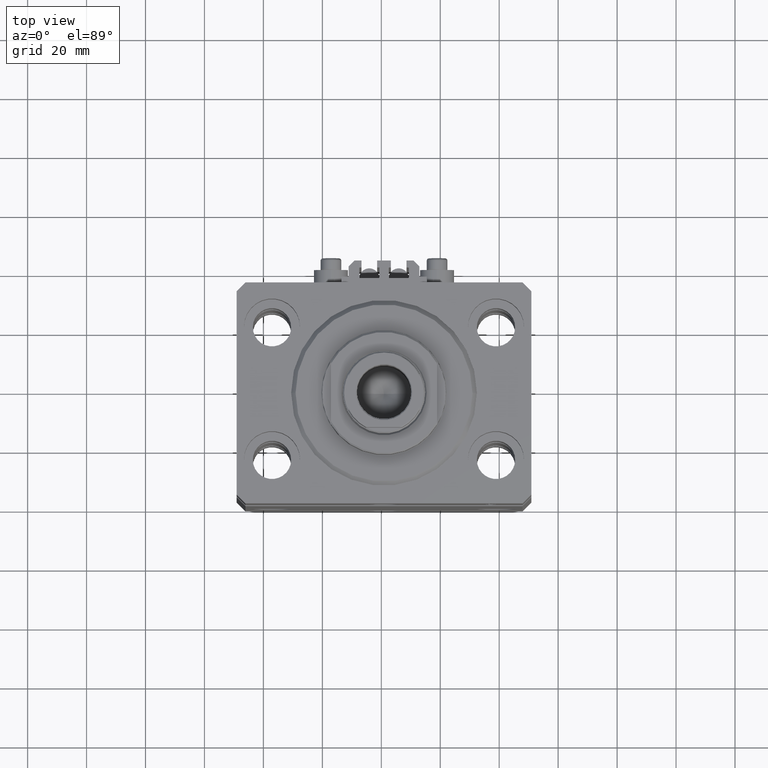
[diagram: clean part render]
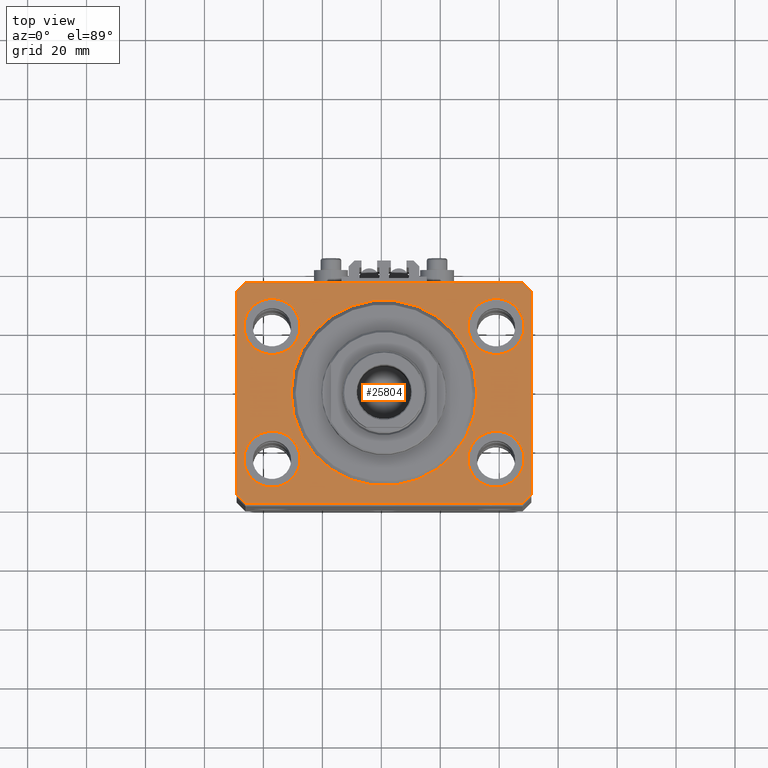
[diagram: same view with one face highlighted and labeled with its STEP entity id]
A machine part, top view. The second image highlights one B-rep face of the part: STEP entity #25804.
In plain terms, the highlighted planar face has unit normal (0, 0, 1).
Its self-contained STEP definition (entity closure, byte-faithful):
#166 = VERTEX_POINT ( 'NONE', #11821 ) ;
#359 = DIRECTION ( 'NONE',  ( 1.000000000000000000, 0.000000000000000000, 0.000000000000000000 ) ) ;
#598 = DIRECTION ( 'NONE',  ( 0.000000000000000000, 0.000000000000000000, 1.000000000000000000 ) ) ;
#782 = CARTESIAN_POINT ( 'NONE',  ( 47.50000000000000711, -22.50000000000000000, 0.000000000000000000 ) ) ;
#1303 = CARTESIAN_POINT ( 'NONE',  ( -47.00000000000000000, -37.49999999999999289, 0.000000000000000000 ) ) ;
#1490 = CARTESIAN_POINT ( 'NONE',  ( -38.00000000000000711, -22.50000000000000000, 0.000000000000000000 ) ) ;
#1506 = VERTEX_POINT ( 'NONE', #20974 ) ;
#1576 = ORIENTED_EDGE ( 'NONE', *, *, #12869, .T. ) ;
#1676 = VERTEX_POINT ( 'NONE', #34798 ) ;
#1870 = EDGE_LOOP ( 'NONE', ( #39419, #19775 ) ) ;
#2377 = EDGE_LOOP ( 'NONE', ( #22781, #12585 ) ) ;
#3584 = ORIENTED_EDGE ( 'NONE', *, *, #30502, .F. ) ;
#3914 = CARTESIAN_POINT ( 'NONE',  ( 0.000000000000000000, 0.000000000000000000, 0.000000000000000000 ) ) ;
#3920 = EDGE_CURVE ( 'NONE', #21399, #1676, #5706, .T. ) ;
#4690 = VERTEX_POINT ( 'NONE', #18061 ) ;
#5026 = LINE ( 'NONE', #1303, #34490 ) ;
#5327 = VECTOR ( 'NONE', #35050, 1000.000000000000000 ) ;
#5407 = VERTEX_POINT ( 'NONE', #33168 ) ;
#5416 = LINE ( 'NONE', #35643, #21094 ) ;
#5705 = CARTESIAN_POINT ( 'NONE',  ( 47.00000000000056843, 37.49999999999999289, 0.000000000000000000 ) ) ;
#5706 = CIRCLE ( 'NONE', #18380, 9.500000000000001776 ) ;
#6029 = AXIS2_PLACEMENT_3D ( 'NONE', #9250, #34534, #24113 ) ;
#6598 = VERTEX_POINT ( 'NONE', #28485 ) ;
#6695 = DIRECTION ( 'NONE',  ( -1.000000000000000000, 7.381802025433175941E-17, 0.000000000000000000 ) ) ;
#7546 = DIRECTION ( 'NONE',  ( 0.000000000000000000, 0.000000000000000000, 1.000000000000000000 ) ) ;
#7851 = CARTESIAN_POINT ( 'NONE',  ( -50.00000000000000000, -34.50000000000000000, 0.000000000000000000 ) ) ;
#7987 = DIRECTION ( 'NONE',  ( 0.000000000000000000, 0.000000000000000000, 1.000000000000000000 ) ) ;
#8213 = ORIENTED_EDGE ( 'NONE', *, *, #16818, .T. ) ;
#8388 = VECTOR ( 'NONE', #21939, 1000.000000000000000 ) ;
#8524 = ORIENTED_EDGE ( 'NONE', *, *, #13900, .T. ) ;
#8986 = EDGE_CURVE ( 'NONE', #48482, #11734, #19328, .T. ) ;
#9250 = CARTESIAN_POINT ( 'NONE',  ( -38.00000000000000711, 22.50000000000000000, 0.000000000000000000 ) ) ;
#9757 = EDGE_CURVE ( 'NONE', #17304, #29160, #48124, .T. ) ;
#9930 = ORIENTED_EDGE ( 'NONE', *, *, #30952, .F. ) ;
#10018 = VECTOR ( 'NONE', #6695, 1000.000000000000000 ) ;
#10464 = DIRECTION ( 'NONE',  ( 2.011273595335428326E-16, -1.000000000000000000, 0.000000000000000000 ) ) ;
#10489 = ORIENTED_EDGE ( 'NONE', *, *, #13196, .F. ) ;
#10831 = AXIS2_PLACEMENT_3D ( 'NONE', #38451, #7987, #11461 ) ;
#10876 = PLANE ( 'NONE',  #42012 ) ;
#11461 = DIRECTION ( 'NONE',  ( 1.000000000000000000, 0.000000000000000000, 0.000000000000000000 ) ) ;
#11563 = DIRECTION ( 'NONE',  ( 0.7071067811865491270, -0.7071067811865459074, 0.000000000000000000 ) ) ;
#11585 = DIRECTION ( 'NONE',  ( 0.000000000000000000, 0.000000000000000000, 1.000000000000000000 ) ) ;
#11698 = DIRECTION ( 'NONE',  ( 1.000000000000000000, 0.000000000000000000, 0.000000000000000000 ) ) ;
#11734 = VERTEX_POINT ( 'NONE', #47894 ) ;
#11821 = CARTESIAN_POINT ( 'NONE',  ( 47.00000000000000000, -37.50000000000000711, 0.000000000000000000 ) ) ;
#12237 = VECTOR ( 'NONE', #10464, 1000.000000000000000 ) ;
#12538 = EDGE_CURVE ( 'NONE', #32385, #166, #5026, .T. ) ;
#12557 = VERTEX_POINT ( 'NONE', #16925 ) ;
#12585 = ORIENTED_EDGE ( 'NONE', *, *, #14353, .F. ) ;
#12869 = EDGE_CURVE ( 'NONE', #29160, #32385, #30147, .T. ) ;
#12975 = EDGE_CURVE ( 'NONE', #166, #4690, #47951, .T. ) ;
#13196 = EDGE_CURVE ( 'NONE', #41722, #6598, #42415, .T. ) ;
#13539 = CARTESIAN_POINT ( 'NONE',  ( 50.00000000000051870, 34.49999999999995026, 0.000000000000000000 ) ) ;
#13612 = ORIENTED_EDGE ( 'NONE', *, *, #12538, .T. ) ;
#13851 = CARTESIAN_POINT ( 'NONE',  ( 28.50000000000000355, 22.50000000000001421, 0.000000000000000000 ) ) ;
#13900 = EDGE_CURVE ( 'NONE', #4690, #12557, #5416, .T. ) ;
#13967 = AXIS2_PLACEMENT_3D ( 'NONE', #38685, #42159, #41671 ) ;
#14335 = FACE_BOUND ( 'NONE', #1870, .T. ) ;
#14353 = EDGE_CURVE ( 'NONE', #28172, #1506, #16372, .T. ) ;
#14359 = ORIENTED_EDGE ( 'NONE', *, *, #44969, .T. ) ;
#14441 = ORIENTED_EDGE ( 'NONE', *, *, #17875, .F. ) ;
#14754 = EDGE_CURVE ( 'NONE', #5407, #18740, #42478, .T. ) ;
#15468 = DIRECTION ( 'NONE',  ( 1.000000000000000000, 0.000000000000000000, 0.000000000000000000 ) ) ;
#16372 = CIRCLE ( 'NONE', #25091, 31.50000000000000000 ) ;
#16818 = EDGE_CURVE ( 'NONE', #45517, #19856, #21324, .T. ) ;
#16925 = CARTESIAN_POINT ( 'NONE',  ( 50.00000000000051870, 34.49999999999995026, 0.000000000000000000 ) ) ;
#17304 = VERTEX_POINT ( 'NONE', #25885 ) ;
#17875 = EDGE_CURVE ( 'NONE', #6598, #41722, #36939, .T. ) ;
#18061 = CARTESIAN_POINT ( 'NONE',  ( 50.00000000000000000, -34.50000000000000711, 0.000000000000000000 ) ) ;
#18307 = CARTESIAN_POINT ( 'NONE',  ( 47.00000000000056843, 37.49999999999999289, 0.000000000000000000 ) ) ;
#18380 = AXIS2_PLACEMENT_3D ( 'NONE', #27315, #28045, #19648 ) ;
#18740 = VERTEX_POINT ( 'NONE', #782 ) ;
#19328 = CIRCLE ( 'NONE', #47802, 9.500000000000001776 ) ;
#19648 = DIRECTION ( 'NONE',  ( 1.000000000000000000, 0.000000000000000000, 0.000000000000000000 ) ) ;
#19664 = DIRECTION ( 'NONE',  ( 1.000000000000000000, -1.476360405086644309E-16, 0.000000000000000000 ) ) ;
#19775 = ORIENTED_EDGE ( 'NONE', *, *, #3920, .F. ) ;
#19856 = VERTEX_POINT ( 'NONE', #36753 ) ;
#20343 = AXIS2_PLACEMENT_3D ( 'NONE', #27180, #11585, #35340 ) ;
#20974 = CARTESIAN_POINT ( 'NONE',  ( 31.50000000000000000, 0.000000000000000000, 0.000000000000000000 ) ) ;
#21028 = DIRECTION ( 'NONE',  ( 7.441712302741091634E-15, 1.000000000000000000, 0.000000000000000000 ) ) ;
#21094 = VECTOR ( 'NONE', #21028, 1000.000000000000000 ) ;
#21263 = CIRCLE ( 'NONE', #40224, 31.50000000000000000 ) ;
#21324 = LINE ( 'NONE', #5705, #10018 ) ;
#21399 = VERTEX_POINT ( 'NONE', #13851 ) ;
#21939 = DIRECTION ( 'NONE',  ( 0.7071067811865483499, 0.7071067811865466846, 0.000000000000000000 ) ) ;
#22781 = ORIENTED_EDGE ( 'NONE', *, *, #37489, .F. ) ;
#24113 = DIRECTION ( 'NONE',  ( 1.000000000000000000, 0.000000000000000000, 0.000000000000000000 ) ) ;
#25091 = AXIS2_PLACEMENT_3D ( 'NONE', #45646, #41684, #11698 ) ;
#25520 = CARTESIAN_POINT ( 'NONE',  ( 0.000000000000000000, 0.000000000000000000, 0.000000000000000000 ) ) ;
#25742 = DIRECTION ( 'NONE',  ( 0.000000000000000000, 0.000000000000000000, 1.000000000000000000 ) ) ;
#25804 = ADVANCED_FACE ( 'NONE', ( #33165, #36888, #14335, #33652, #44568, #45054 ), #10876, .T. ) ;
#25885 = CARTESIAN_POINT ( 'NONE',  ( -50.00000000000001421, 34.50000000000000000, 0.000000000000000000 ) ) ;
#26660 = DIRECTION ( 'NONE',  ( 0.000000000000000000, 0.000000000000000000, 1.000000000000000000 ) ) ;
#26796 = DIRECTION ( 'NONE',  ( 0.000000000000000000, 0.000000000000000000, 1.000000000000000000 ) ) ;
#26924 = CARTESIAN_POINT ( 'NONE',  ( -28.50000000000000355, -22.50000000000000000, 0.000000000000000000 ) ) ;
#27180 = CARTESIAN_POINT ( 'NONE',  ( 38.00000000000000711, -22.50000000000000000, 0.000000000000000000 ) ) ;
#27315 = CARTESIAN_POINT ( 'NONE',  ( 38.00000000000000711, 22.50000000000001421, 0.000000000000000000 ) ) ;
#27640 = EDGE_CURVE ( 'NONE', #1676, #21399, #43932, .T. ) ;
#28045 = DIRECTION ( 'NONE',  ( 0.000000000000000000, 0.000000000000000000, 1.000000000000000000 ) ) ;
#28172 = VERTEX_POINT ( 'NONE', #39923 ) ;
#28485 = CARTESIAN_POINT ( 'NONE',  ( -47.50000000000000711, 22.50000000000000000, 0.000000000000000000 ) ) ;
#29160 = VERTEX_POINT ( 'NONE', #45328 ) ;
#30091 = CARTESIAN_POINT ( 'NONE',  ( 38.00000000000000711, 22.50000000000001421, 0.000000000000000000 ) ) ;
#30147 = LINE ( 'NONE', #7851, #41638 ) ;
#30502 = EDGE_CURVE ( 'NONE', #18740, #5407, #31386, .T. ) ;
#30592 = EDGE_LOOP ( 'NONE', ( #8213, #45209, #34793, #1576, #13612, #44975, #8524, #14359 ) ) ;
#30952 = EDGE_CURVE ( 'NONE', #11734, #48482, #32179, .T. ) ;
#31386 = CIRCLE ( 'NONE', #48001, 9.500000000000001776 ) ;
#32179 = CIRCLE ( 'NONE', #10831, 9.500000000000001776 ) ;
#32385 = VERTEX_POINT ( 'NONE', #48051 ) ;
#32482 = CARTESIAN_POINT ( 'NONE',  ( -28.50000000000000355, 22.50000000000000000, 0.000000000000000000 ) ) ;
#32921 = DIRECTION ( 'NONE',  ( 1.000000000000000000, 0.000000000000000000, -0.000000000000000000 ) ) ;
#33165 = FACE_BOUND ( 'NONE', #33269, .T. ) ;
#33168 = CARTESIAN_POINT ( 'NONE',  ( 28.50000000000000355, -22.50000000000000000, 0.000000000000000000 ) ) ;
#33190 = DIRECTION ( 'NONE',  ( 1.000000000000000000, 0.000000000000000000, 0.000000000000000000 ) ) ;
#33247 = ORIENTED_EDGE ( 'NONE', *, *, #8986, .F. ) ;
#33269 = EDGE_LOOP ( 'NONE', ( #33247, #9930 ) ) ;
#33338 = VECTOR ( 'NONE', #33588, 1000.000000000000114 ) ;
#33588 = DIRECTION ( 'NONE',  ( -0.7071067811865361374, 0.7071067811865588970, 0.000000000000000000 ) ) ;
#33652 = FACE_BOUND ( 'NONE', #34400, .T. ) ;
#34400 = EDGE_LOOP ( 'NONE', ( #10489, #14441 ) ) ;
#34490 = VECTOR ( 'NONE', #19664, 1000.000000000000000 ) ;
#34534 = DIRECTION ( 'NONE',  ( 0.000000000000000000, 0.000000000000000000, 1.000000000000000000 ) ) ;
#34793 = ORIENTED_EDGE ( 'NONE', *, *, #9757, .T. ) ;
#34798 = CARTESIAN_POINT ( 'NONE',  ( 47.50000000000000711, 22.50000000000001421, 0.000000000000000000 ) ) ;
#35050 = DIRECTION ( 'NONE',  ( -0.7071067811865483499, -0.7071067811865466846, 0.000000000000000000 ) ) ;
#35340 = DIRECTION ( 'NONE',  ( 1.000000000000000000, 0.000000000000000000, 0.000000000000000000 ) ) ;
#35629 = EDGE_CURVE ( 'NONE', #19856, #17304, #42247, .T. ) ;
#35643 = CARTESIAN_POINT ( 'NONE',  ( 50.00000000000000000, -34.50000000000000711, 0.000000000000000000 ) ) ;
#36753 = CARTESIAN_POINT ( 'NONE',  ( -47.00000000000001421, 37.50000000000000000, 0.000000000000000000 ) ) ;
#36888 = FACE_BOUND ( 'NONE', #42229, .T. ) ;
#36939 = CIRCLE ( 'NONE', #13967, 9.500000000000001776 ) ;
#37458 = CARTESIAN_POINT ( 'NONE',  ( -50.00000000000001421, 34.50000000000000000, 0.000000000000000000 ) ) ;
#37489 = EDGE_CURVE ( 'NONE', #1506, #28172, #21263, .T. ) ;
#38028 = CARTESIAN_POINT ( 'NONE',  ( 38.00000000000000711, -22.50000000000000000, 0.000000000000000000 ) ) ;
#38451 = CARTESIAN_POINT ( 'NONE',  ( -38.00000000000000711, -22.50000000000000000, 0.000000000000000000 ) ) ;
#38685 = CARTESIAN_POINT ( 'NONE',  ( -38.00000000000000711, 22.50000000000000000, 0.000000000000000000 ) ) ;
#38778 = CARTESIAN_POINT ( 'NONE',  ( -47.00000000000001421, 37.50000000000000000, 0.000000000000000000 ) ) ;
#39419 = ORIENTED_EDGE ( 'NONE', *, *, #27640, .F. ) ;
#39923 = CARTESIAN_POINT ( 'NONE',  ( -31.50000000000000000, 3.857637417314162689E-15, 0.000000000000000000 ) ) ;
#40224 = AXIS2_PLACEMENT_3D ( 'NONE', #25520, #26660, #33190 ) ;
#40796 = AXIS2_PLACEMENT_3D ( 'NONE', #30091, #7546, #15468 ) ;
#41638 = VECTOR ( 'NONE', #11563, 1000.000000000000114 ) ;
#41671 = DIRECTION ( 'NONE',  ( 1.000000000000000000, 0.000000000000000000, 0.000000000000000000 ) ) ;
#41684 = DIRECTION ( 'NONE',  ( 0.000000000000000000, 0.000000000000000000, 1.000000000000000000 ) ) ;
#41722 = VERTEX_POINT ( 'NONE', #32482 ) ;
#41915 = DIRECTION ( 'NONE',  ( 1.000000000000000000, 0.000000000000000000, 0.000000000000000000 ) ) ;
#42012 = AXIS2_PLACEMENT_3D ( 'NONE', #3914, #25742, #32921 ) ;
#42159 = DIRECTION ( 'NONE',  ( 0.000000000000000000, 0.000000000000000000, 1.000000000000000000 ) ) ;
#42229 = EDGE_LOOP ( 'NONE', ( #3584, #47028 ) ) ;
#42247 = LINE ( 'NONE', #38778, #5327 ) ;
#42415 = CIRCLE ( 'NONE', #6029, 9.500000000000001776 ) ;
#42478 = CIRCLE ( 'NONE', #20343, 9.500000000000001776 ) ;
#43504 = CARTESIAN_POINT ( 'NONE',  ( 47.00000000000000000, -37.50000000000000711, 0.000000000000000000 ) ) ;
#43932 = CIRCLE ( 'NONE', #40796, 9.500000000000001776 ) ;
#44568 = FACE_BOUND ( 'NONE', #2377, .T. ) ;
#44969 = EDGE_CURVE ( 'NONE', #12557, #45517, #47500, .T. ) ;
#44975 = ORIENTED_EDGE ( 'NONE', *, *, #12975, .T. ) ;
#45054 = FACE_OUTER_BOUND ( 'NONE', #30592, .T. ) ;
#45209 = ORIENTED_EDGE ( 'NONE', *, *, #35629, .T. ) ;
#45328 = CARTESIAN_POINT ( 'NONE',  ( -50.00000000000000000, -34.50000000000000000, 0.000000000000000000 ) ) ;
#45517 = VERTEX_POINT ( 'NONE', #18307 ) ;
#45646 = CARTESIAN_POINT ( 'NONE',  ( 0.000000000000000000, 0.000000000000000000, 0.000000000000000000 ) ) ;
#47028 = ORIENTED_EDGE ( 'NONE', *, *, #14754, .F. ) ;
#47500 = LINE ( 'NONE', #13539, #33338 ) ;
#47802 = AXIS2_PLACEMENT_3D ( 'NONE', #1490, #26796, #41915 ) ;
#47894 = CARTESIAN_POINT ( 'NONE',  ( -47.50000000000000711, -22.50000000000000000, 0.000000000000000000 ) ) ;
#47951 = LINE ( 'NONE', #43504, #8388 ) ;
#48001 = AXIS2_PLACEMENT_3D ( 'NONE', #38028, #598, #359 ) ;
#48051 = CARTESIAN_POINT ( 'NONE',  ( -47.00000000000000000, -37.49999999999999289, 0.000000000000000000 ) ) ;
#48124 = LINE ( 'NONE', #37458, #12237 ) ;
#48482 = VERTEX_POINT ( 'NONE', #26924 ) ;